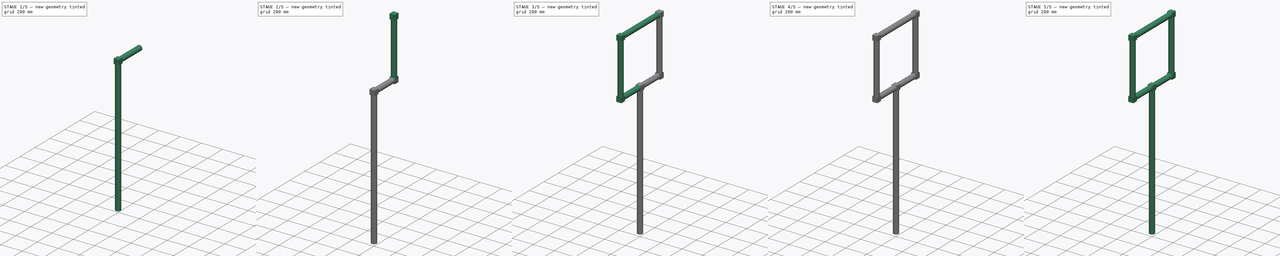
[diagram: build sequence overview — one tinted view per stage of 5, left to right]
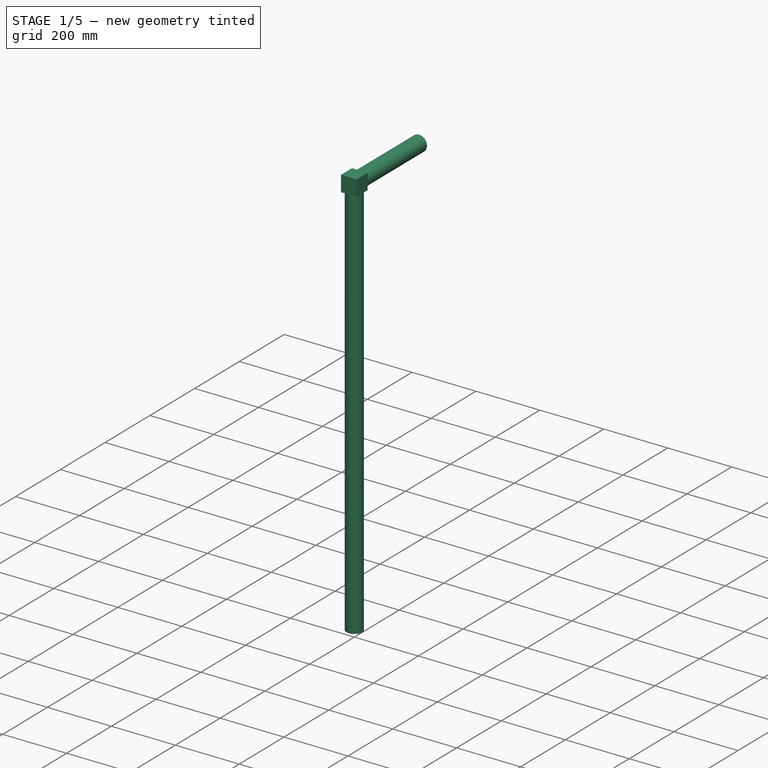
[diagram: stage 1 of 5 — iso view after this stage's code; geometry added in this stage tinted green]
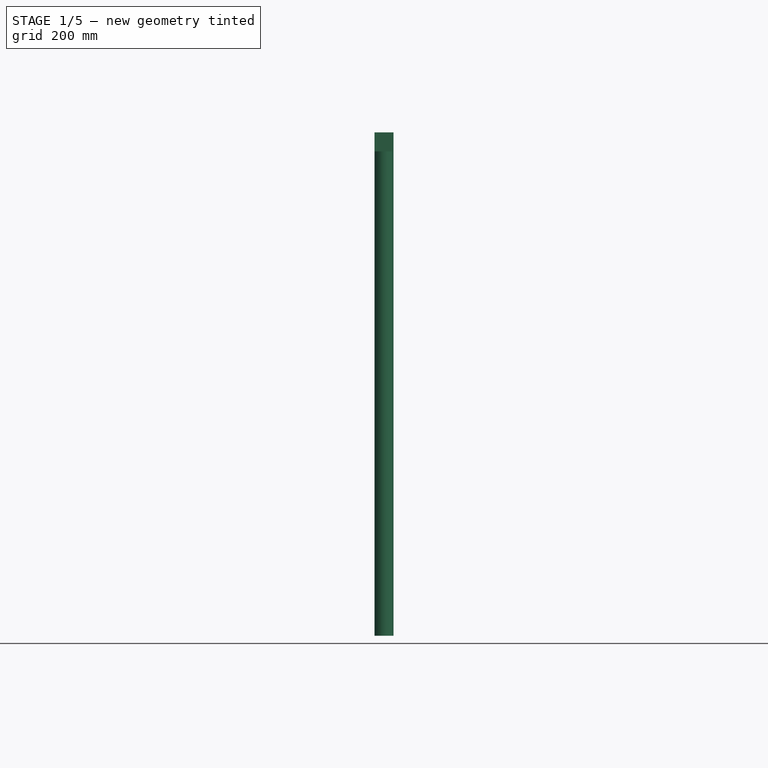
[diagram: stage 1 of 5 — front view after this stage's code; geometry added in this stage tinted green]
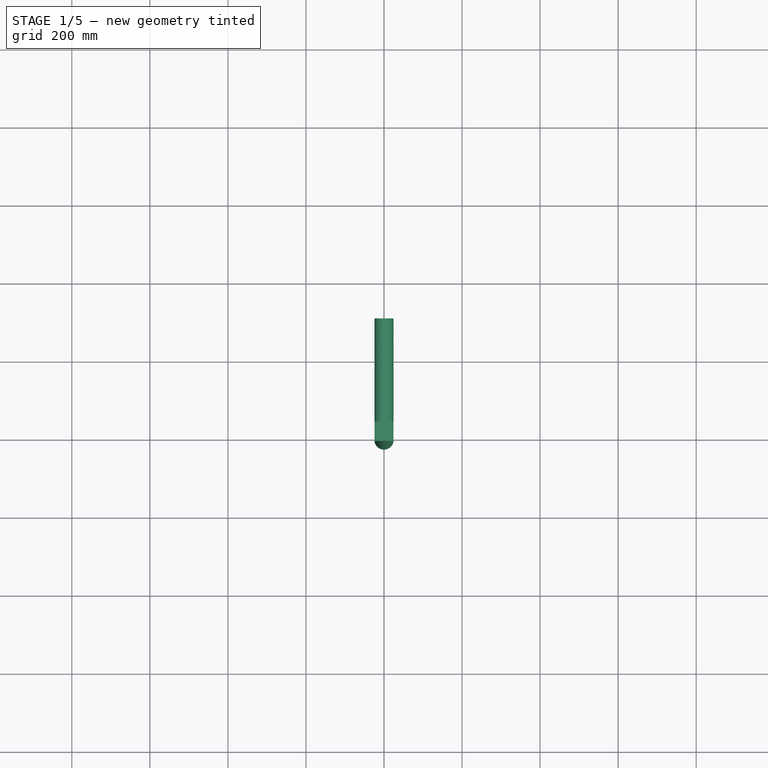
[diagram: stage 1 of 5 — top view after this stage's code; geometry added in this stage tinted green]
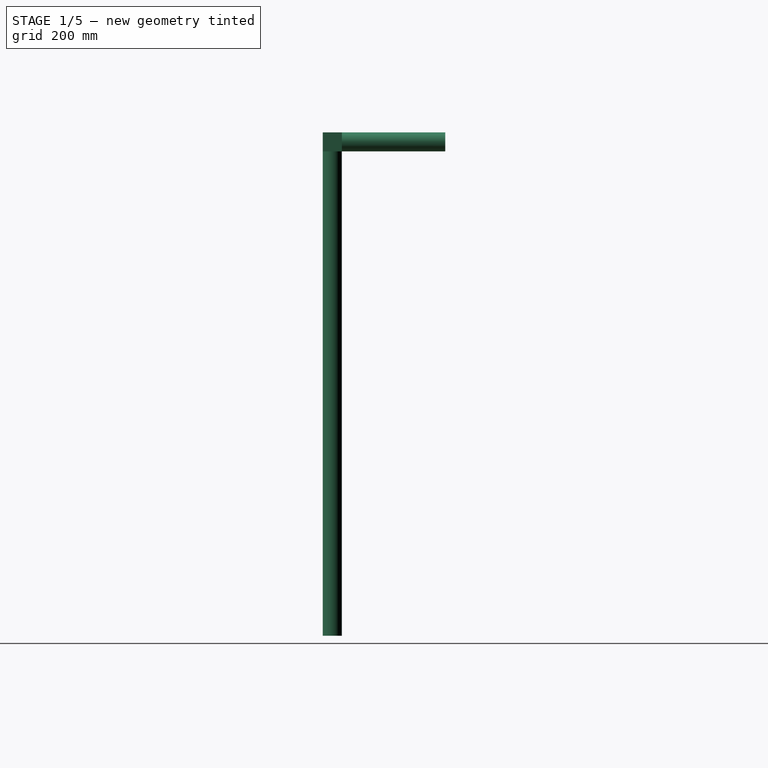
[diagram: stage 1 of 5 — right view after this stage's code; geometry added in this stage tinted green]
FCSTD DOCUMENT  (FreeCAD 0.18.4R)
Label: Obstacle
License: All rights reserved
LicenseURL: http://en.wikipedia.org/wiki/All_rights_reserved
objects: Part::Mirroring×10, Sketcher::SketchObject×8, PartDesign::Pad×7, PartDesign::Plane×1, PartDesign::Fillet×1, PartDesign::Body×1
note: 35 computed .brp shape members not serialized (recipe doc carries the construction recipe); baked Part::Feature solids carry a one-line shape summary decoded from their .brp

FEATURE [Sketcher::SketchObject] Sketch
  MapMode = 5
  Support = -> [XY_Plane]
  sketch-geometry (1):
    g0: Circle CenterX=0 CenterY=0 CenterZ=0 NormalX=0 NormalY=0 NormalZ=1 AngleXU=0 Radius=24.5
  constraints (2):
    c: Radius(g0) = 24.5
    c: Coincident(g0,g-1)
FEATURE [PartDesign::Pad] Pad
  Length = 1290
  Length2 = 100
  Profile = -> Sketch
  Type = 0
FEATURE [Sketcher::SketchObject] Sketch001
  MapMode = 5
  Placement = pos=(0,0,1290) rot=(0,0,1;0rad)
  Support = -> [Pad]
  sketch-geometry (4):
    g0: LineSegment StartX=-24.5 StartY=-24.5 StartZ=0 EndX=24.5 EndY=-24.5 EndZ=0
    g1: LineSegment StartX=24.5 StartY=-24.5 StartZ=0 EndX=24.5 EndY=24.5 EndZ=0
    g2: LineSegment StartX=24.5 StartY=24.5 StartZ=0 EndX=-24.5 EndY=24.5 EndZ=0
    g3: LineSegment StartX=-24.5 StartY=24.5 StartZ=0 EndX=-24.5 EndY=-24.5 EndZ=0
  constraints (12):
    c: Coincident(g0,g1)
    c: Coincident(g1,g2)
    c: Coincident(g2,g3)
    c: Coincident(g3,g0)
    c: Horizontal(g0)
    c: Horizontal(g2)
    c: Vertical(g1)
    c: Vertical(g3)
    c: Distance(g1) = 49
    c: Equal(g1,g2)
    c: Distance(g-1,g0) = 24.5
    c: Distance(g-1,g3) = 24.5
FEATURE [PartDesign::Pad] Pad001
  BaseFeature = -> Pad
  Length = 49
  Length2 = 100
  Profile = -> Sketch001
  Reversed = true
  Type = 0
FEATURE [Sketcher::SketchObject] Sketch002
  MapMode = 5
  Placement = pos=(0,24.5,0) rot=(0,0.707107,0.707107;3.14159rad)
  Support = -> [Pad001]
  sketch-geometry (1):
    g0: Circle CenterX=8.16145 CenterY=1266.14 CenterZ=0 NormalX=0 NormalY=0 NormalZ=1 AngleXU=0 Radius=26.8225
FEATURE [Sketcher::SketchObject] Sketch003
  ExternalGeometry = -> [Pad001]
  MapMode = 5
  Placement = pos=(0,24.5,0) rot=(0,0.707107,0.707107;3.14159rad)
  Support = -> [Pad001]
  sketch-geometry (1):
    g0: Circle CenterX=3.56e-14 CenterY=1265.5 CenterZ=0 NormalX=0 NormalY=0 NormalZ=1 AngleXU=0 Radius=24.5
  constraints (3):
    c: Radius(g0) = 24.5
    c: Tangent(g0,g-4)
    c: Tangent(g0,g-3)
FEATURE [PartDesign::Pad] Pad002
  BaseFeature = -> Pad001
  Length = 265
  Length2 = 100
  Profile = -> Sketch003
  Type = 0
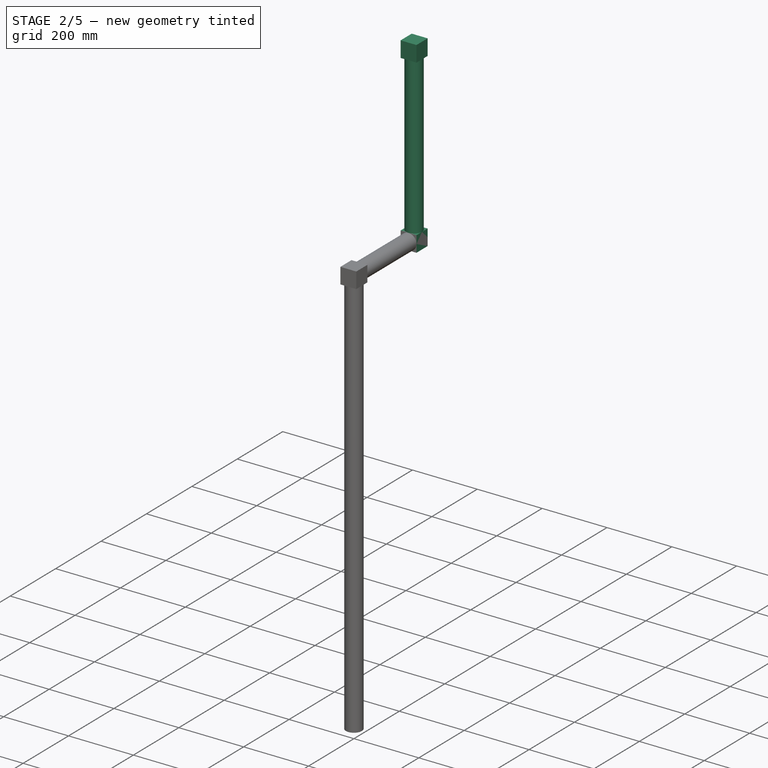
[diagram: stage 2 of 5 — iso view after this stage's code; geometry added in this stage tinted green]
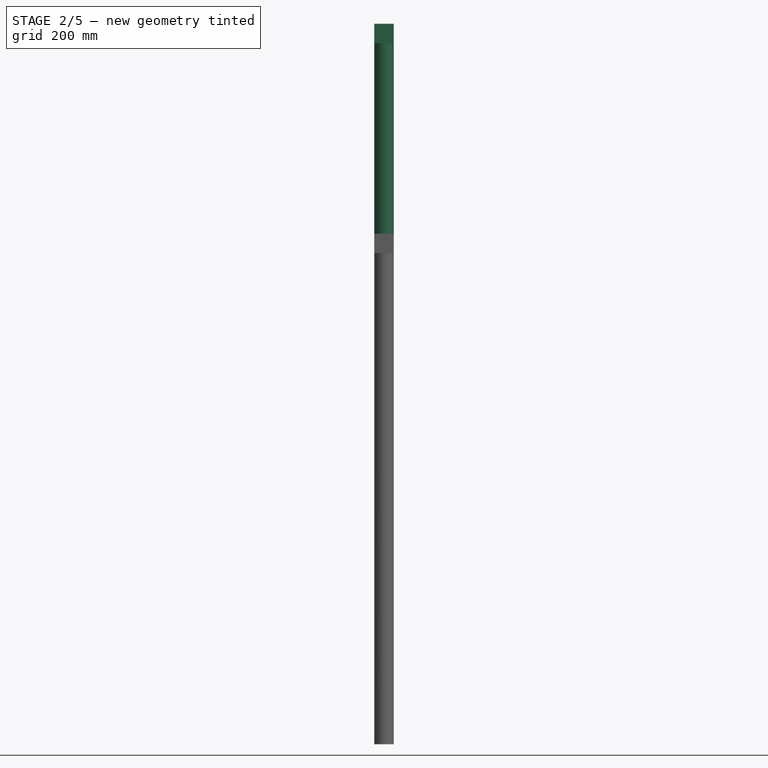
[diagram: stage 2 of 5 — front view after this stage's code; geometry added in this stage tinted green]
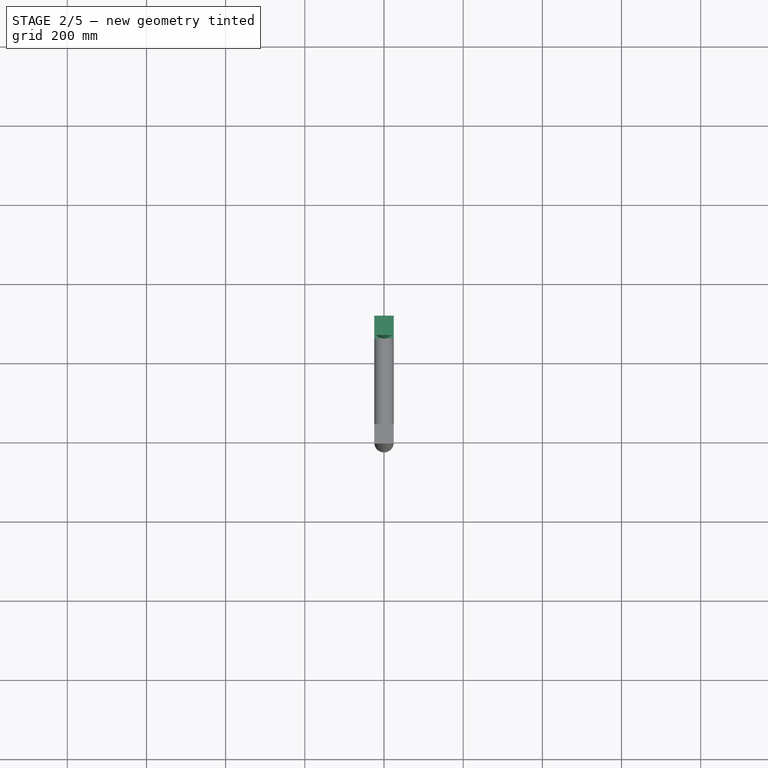
[diagram: stage 2 of 5 — top view after this stage's code; geometry added in this stage tinted green]
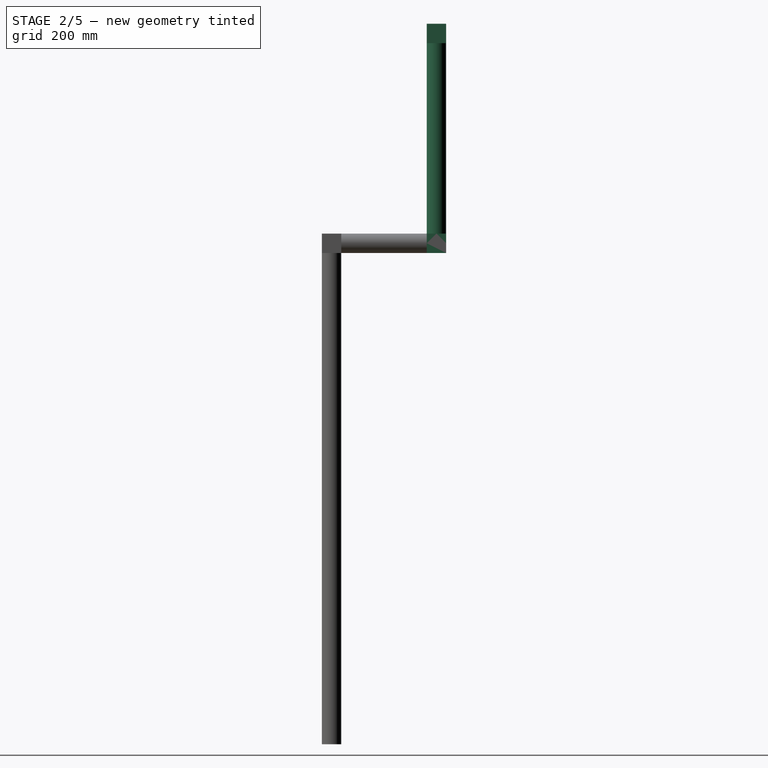
[diagram: stage 2 of 5 — right view after this stage's code; geometry added in this stage tinted green]
FEATURE [Sketcher::SketchObject] Sketch004
  ExternalGeometry = -> [Pad002]
  MapMode = 5
  Placement = pos=(0,289.5,-4.85e-14) rot=(0,0.707107,0.707107;3.14159rad)
  Support = -> [Pad002]
  sketch-geometry (4):
    g0: LineSegment StartX=-24.5 StartY=1290 StartZ=0 EndX=24.5 EndY=1290 EndZ=0
    g1: LineSegment StartX=24.5 StartY=1290 StartZ=0 EndX=24.5 EndY=1241 EndZ=0
    g2: LineSegment StartX=24.5 StartY=1241 StartZ=0 EndX=-24.5 EndY=1241 EndZ=0
    g3: LineSegment StartX=-24.5 StartY=1241 StartZ=0 EndX=-24.5 EndY=1290 EndZ=0
  constraints (10):
    c: Coincident(g0,g1)
    c: Coincident(g1,g2)
    c: Coincident(g2,g3)
    c: Coincident(g3,g0)
    c: Horizontal(g0)
    c: Horizontal(g2)
    c: Vertical(g1)
    c: Vertical(g3)
    c: Coincident(g0,g-4)
    c: Coincident(g1,g-3)
FEATURE [PartDesign::Pad] Pad003
  BaseFeature = -> Pad002
  Length = 49
  Length2 = 100
  Profile = -> Sketch004
  Reversed = true
  Type = 0
FEATURE [Sketcher::SketchObject] Sketch005
  ExternalGeometry = -> [Pad003]
  MapMode = 5
  Placement = pos=(0,2.864e-13,1290) rot=(0,0,1;0rad)
  Support = -> [Pad003]
  sketch-geometry (1):
    g0: Circle CenterX=-7.7e-15 CenterY=265 CenterZ=0 NormalX=0 NormalY=0 NormalZ=1 AngleXU=0 Radius=24.5
  constraints (3):
    c: Radius(g0) = 24.5
    c: Tangent(g0,g-4)
    c: Tangent(g0,g-3)
FEATURE [PartDesign::Pad] Pad004
  BaseFeature = -> Pad003
  Length = 530
  Length2 = 100
  Profile = -> Sketch005
  Type = 0
FEATURE [Sketcher::SketchObject] Sketch006
  ExternalGeometry = -> [Pad004]
  MapMode = 5
  Placement = pos=(0,0,1820) rot=(0,0,1;0rad)
  Support = -> [Pad004]
  sketch-geometry (4):
    g0: LineSegment StartX=-24.5 StartY=289.5 StartZ=0 EndX=24.5 EndY=289.5 EndZ=0
    g1: LineSegment StartX=24.5 StartY=289.5 StartZ=0 EndX=24.5 EndY=240.5 EndZ=0
    g2: LineSegment StartX=24.5 StartY=240.5 StartZ=0 EndX=-24.5 EndY=240.5 EndZ=0
    g3: LineSegment StartX=-24.5 StartY=240.5 StartZ=0 EndX=-24.5 EndY=289.5 EndZ=0
  constraints (10):
    c: Coincident(g0,g1)
    c: Coincident(g1,g2)
    c: Coincident(g2,g3)
    c: Coincident(g3,g0)
    c: Horizontal(g0)
    c: Horizontal(g2)
    c: Vertical(g1)
    c: Vertical(g3)
    c: Coincident(g0,g-4)
    c: Coincident(g1,g-3)
FEATURE [PartDesign::Pad] Pad005
  BaseFeature = -> Pad004
  Length = 49
  Length2 = 100
  Profile = -> Sketch006
  Reversed = true
  Type = 0
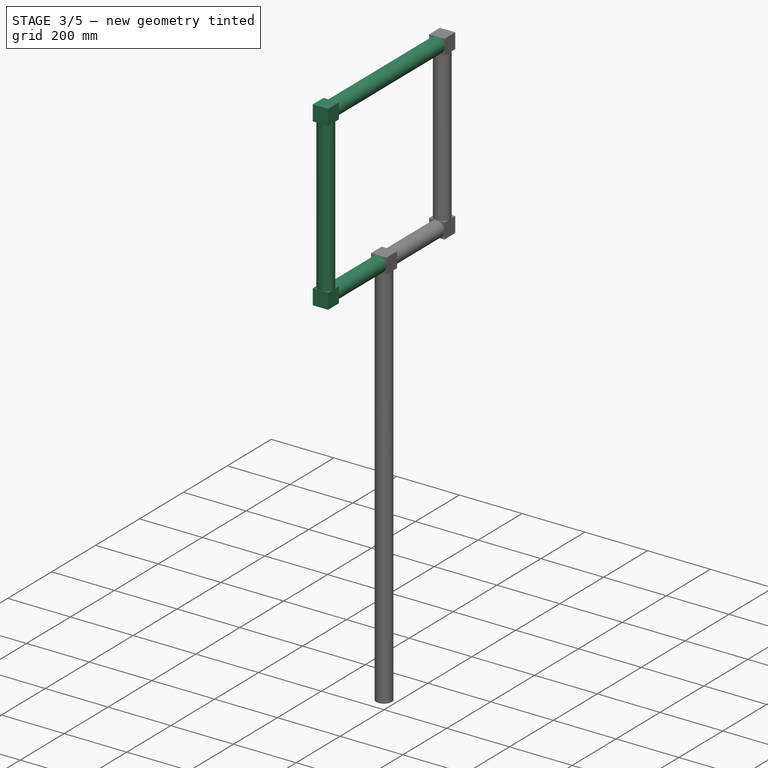
[diagram: stage 3 of 5 — iso view after this stage's code; geometry added in this stage tinted green]
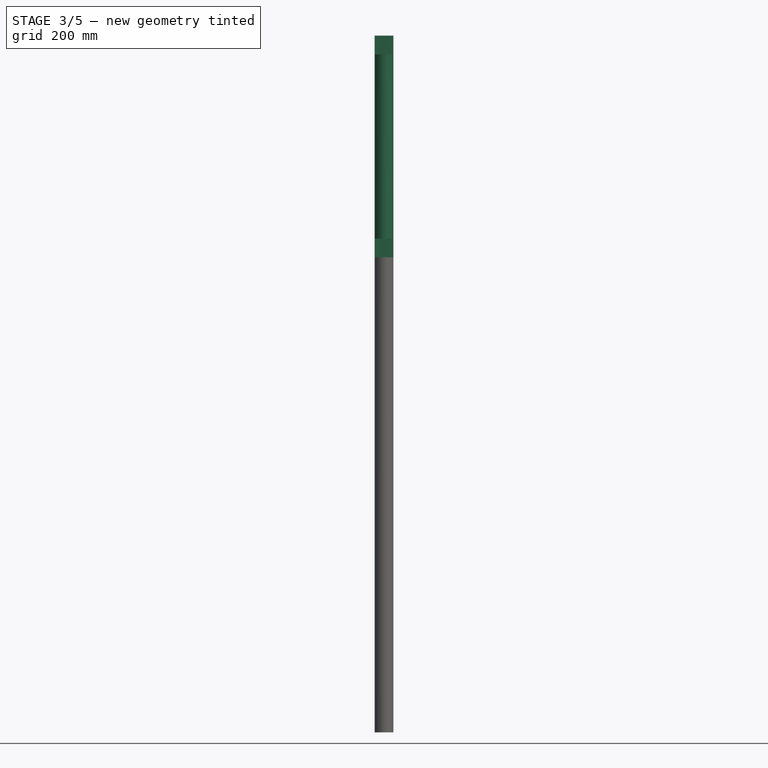
[diagram: stage 3 of 5 — front view after this stage's code; geometry added in this stage tinted green]
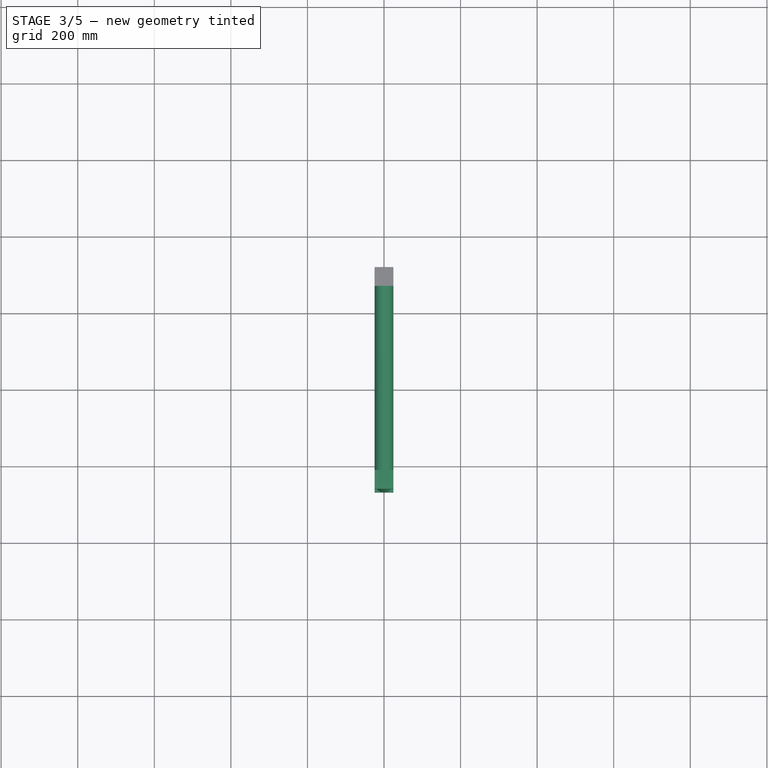
[diagram: stage 3 of 5 — top view after this stage's code; geometry added in this stage tinted green]
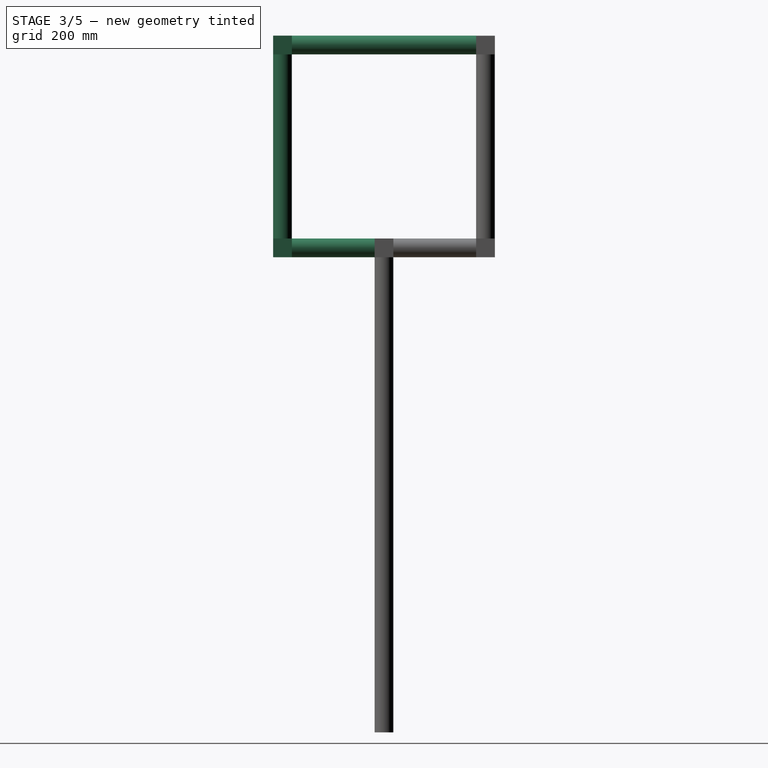
[diagram: stage 3 of 5 — right view after this stage's code; geometry added in this stage tinted green]
FEATURE [Sketcher::SketchObject] Sketch007
  ExternalGeometry = -> [Pad005]
  MapMode = 5
  Placement = pos=(0,240.5,0) rot=(1,0,0;1.5708rad)
  Support = -> [Pad005]
  sketch-geometry (1):
    g0: Circle CenterX=2.66e-14 CenterY=1795.5 CenterZ=0 NormalX=0 NormalY=0 NormalZ=1 AngleXU=0 Radius=24.5
  constraints (3):
    c: Tangent(g0,g-4)
    c: Tangent(g0,g-3)
    c: Radius(g0) = 24.5
FEATURE [PartDesign::Pad] Pad006
  BaseFeature = -> Pad005
  Length = 530
  Length2 = 100
  Profile = -> Sketch007
  Type = 0
FEATURE [Part::Mirroring] Part__Mirroring007  label="Pad004 (Mirror #8)"
  Base = (0,0,0)
  Normal = (0,1,0)
  Source = -> Pad004
FEATURE [Part::Mirroring] Part__Mirroring008  label="Pad005 (Mirror #9)"
  Base = (0,0,0)
  Normal = (0,1,0)
  Source = -> Pad005
FEATURE [Part::Mirroring] Part__Mirroring009  label="DatumPlane (Mirror #10)"
  Base = (0,0,0)
  Normal = (0,1,0)
  Source = -> DatumPlane
FEATURE [PartDesign::Fillet] Fillet
  Base = -> Pad006 [Face58,Face56,Face61,Face60,Face51]
  BaseFeature = -> Pad006
  Radius = 1
FEATURE [PartDesign::Body] Body
  Group = -> [Sketch,Pad,Sketch001,Pad001,Sketch002,Sketch003,Pad002,Sketch004,Pad003,Sketch005,Pad004,Sketch006,Pad005,Sketch007,Pad006,DatumPlane,Fillet]
  Origin = -> Origin
  Tip = -> Fillet
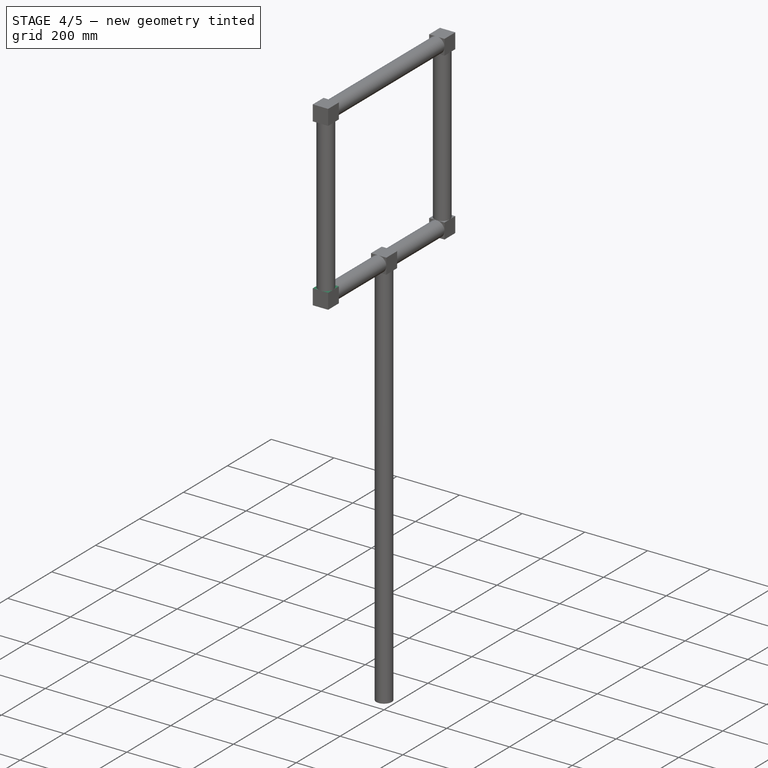
[diagram: stage 4 of 5 — iso view after this stage's code; geometry added in this stage tinted green]
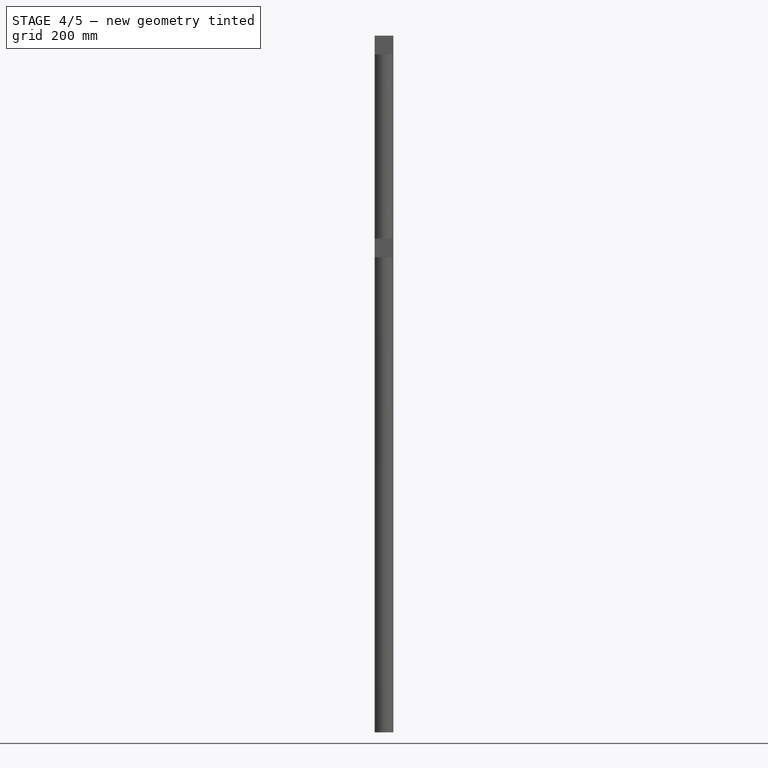
[diagram: stage 4 of 5 — front view after this stage's code; geometry added in this stage tinted green]
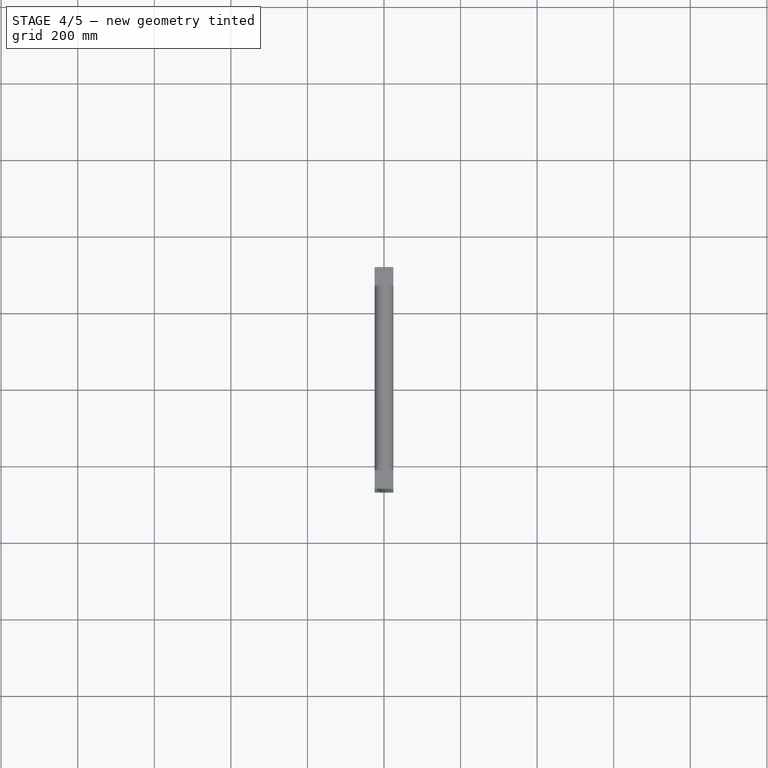
[diagram: stage 4 of 5 — top view after this stage's code; geometry added in this stage tinted green]
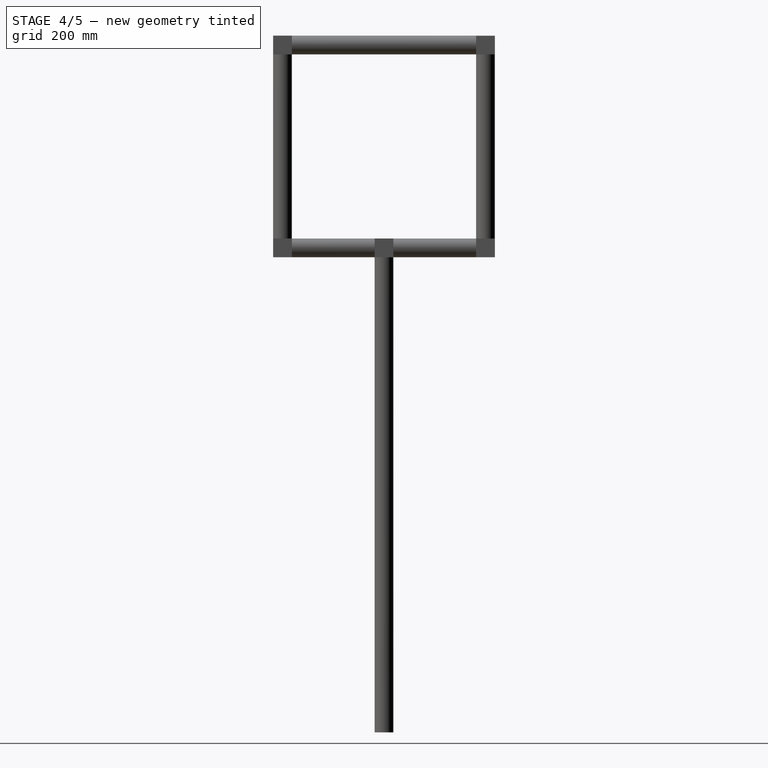
[diagram: stage 4 of 5 — right view after this stage's code; geometry added in this stage tinted green]
FEATURE [Part::Mirroring] Part__Mirroring003  label="Pad005 (Mirror #4)"
  Base = (0,0,0)
  Normal = (0,1,0)
  Source = -> Pad005
FEATURE [Part::Mirroring] Part__Mirroring004  label="DatumPlane (Mirror #5)"
  Base = (0,0,0)
  Normal = (0,1,0)
  Source = -> DatumPlane
FEATURE [Part::Mirroring] Part__Mirroring005  label="Pad002 (Mirror #6)"
  Base = (0,0,0)
  Normal = (0,1,0)
  Source = -> Pad002
FEATURE [Part::Mirroring] Part__Mirroring006  label="Pad003 (Mirror #7)"
  Base = (0,0,0)
  Normal = (0,1,0)
  Source = -> Pad003
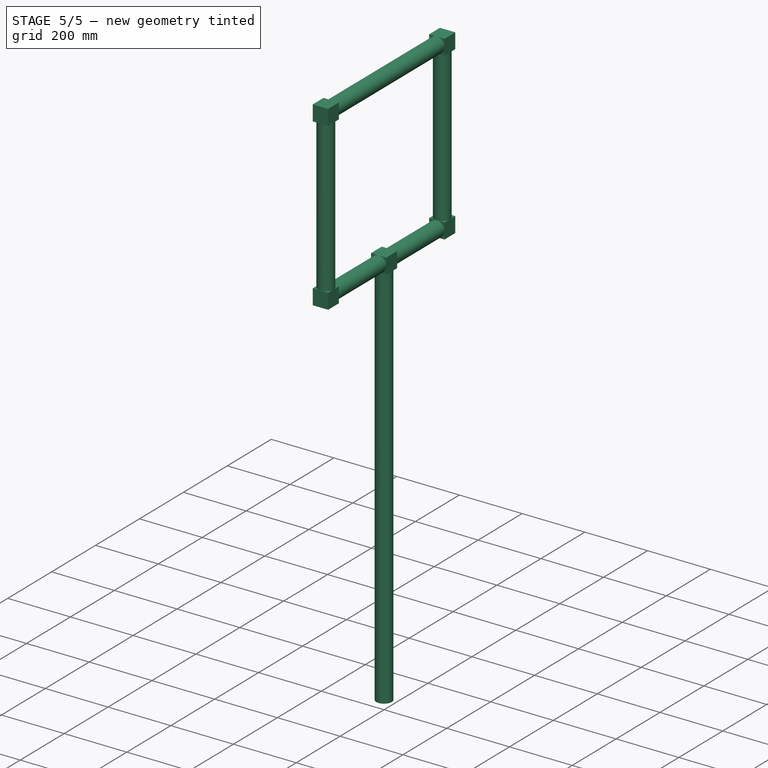
[diagram: stage 5 of 5 — iso view after this stage's code; geometry added in this stage tinted green]
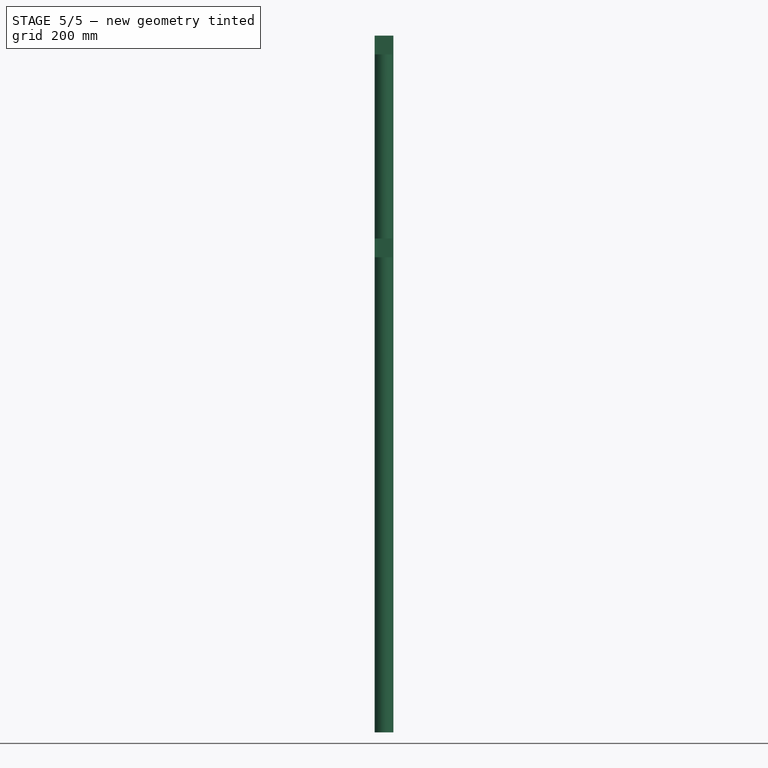
[diagram: stage 5 of 5 — front view after this stage's code; geometry added in this stage tinted green]
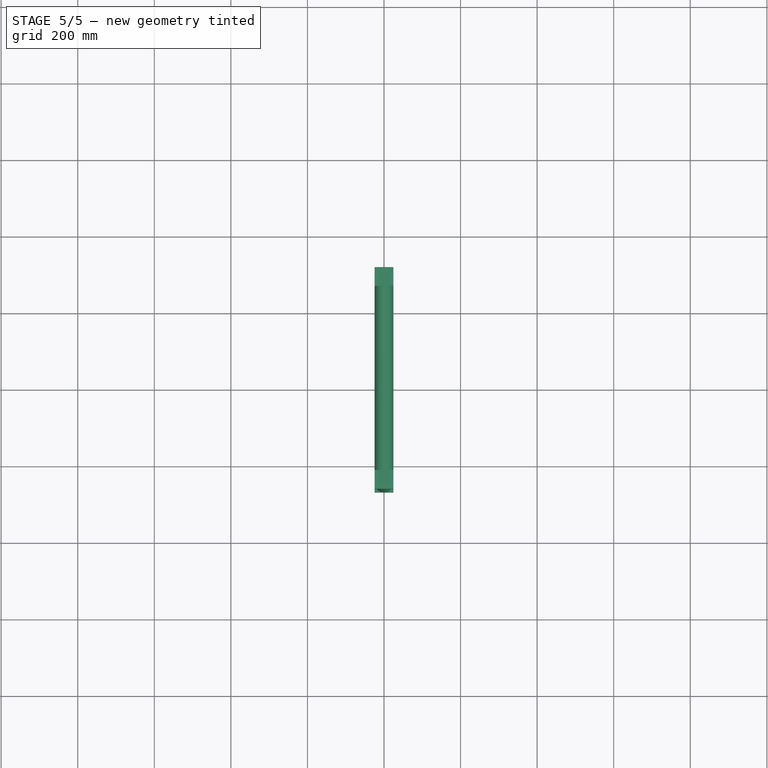
[diagram: stage 5 of 5 — top view after this stage's code; geometry added in this stage tinted green]
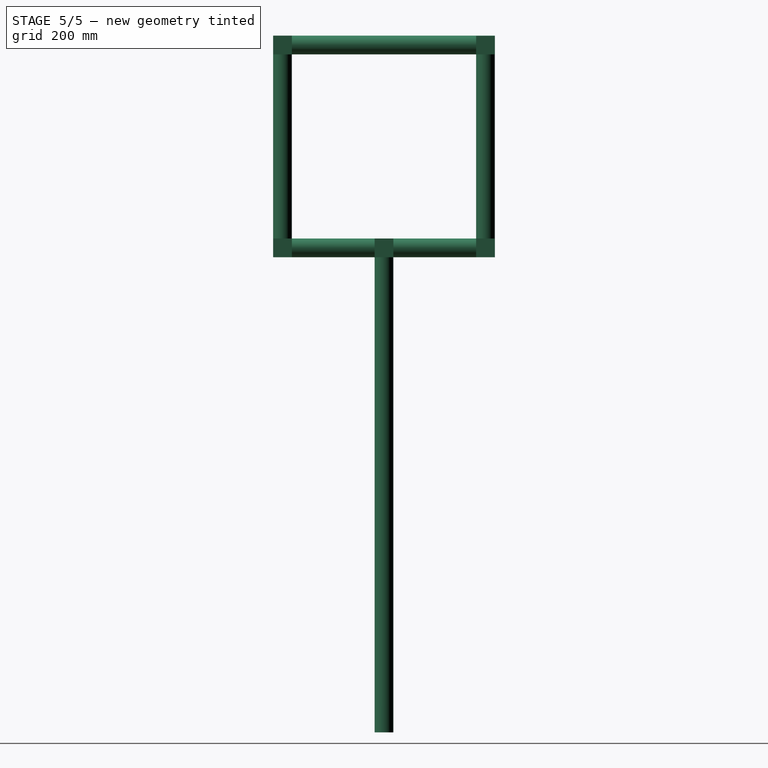
[diagram: stage 5 of 5 — right view after this stage's code; geometry added in this stage tinted green]
FEATURE [PartDesign::Plane] DatumPlane
  AttachmentOffset = pos=(0,0,-24.5) rot=(0,0,1;0rad)
  Length = 1594.39
  MapMode = 45
  Placement = pos=(-6.3425,0,1271.84) rot=(-0.862856,0.357407,0.357407;1.71777rad)
  ResizeMode = 0
  Support = -> [Pad006]
  Width = 1594.39
FEATURE [Part::Mirroring] Part__Mirroring  label="Pad002 (Mirror #1)"
  Base = (0,0,0)
  Normal = (0,1,0)
  Source = -> Pad002
FEATURE [Part::Mirroring] Part__Mirroring001  label="Pad003 (Mirror #2)"
  Base = (0,0,0)
  Normal = (0,1,0)
  Source = -> Pad003
FEATURE [Part::Mirroring] Part__Mirroring002  label="Pad004 (Mirror #3)"
  Base = (0,0,0)
  Normal = (0,1,0)
  Source = -> Pad004
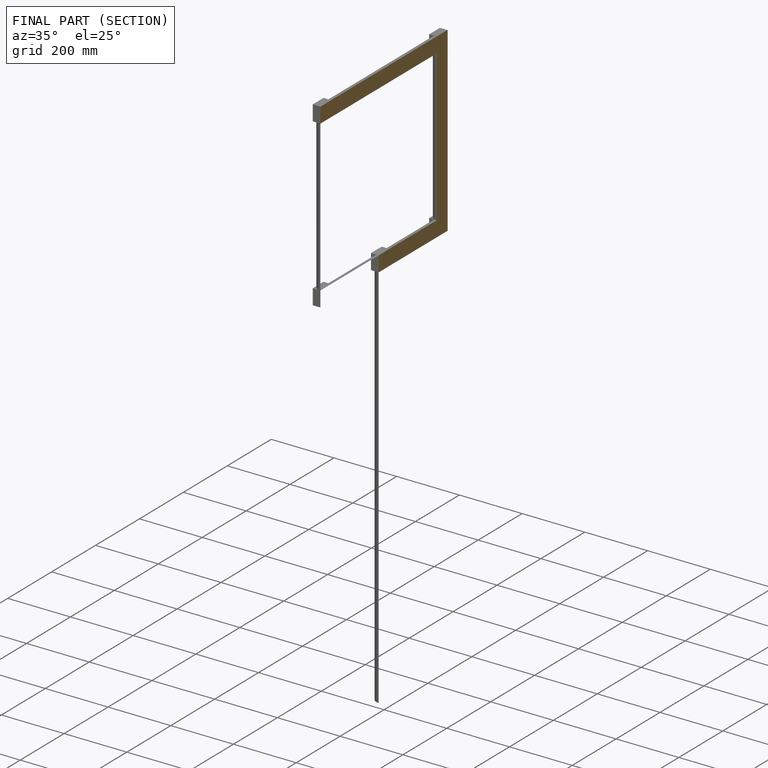
[diagram: finished part — half-section view (interior)]
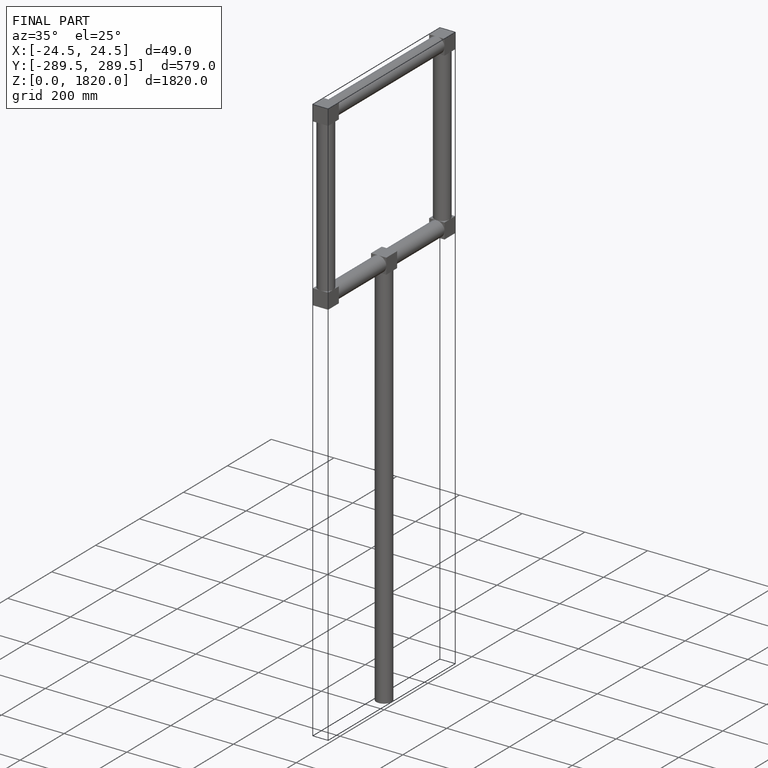
[diagram: finished part — iso view with bounding-box wireframe]
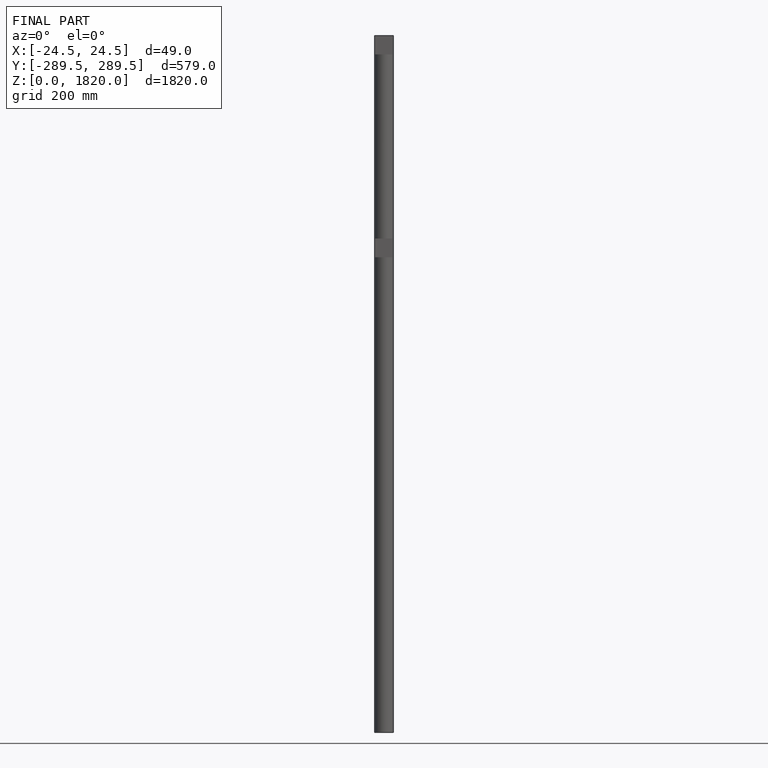
[diagram: finished part — front view with bounding-box wireframe]
